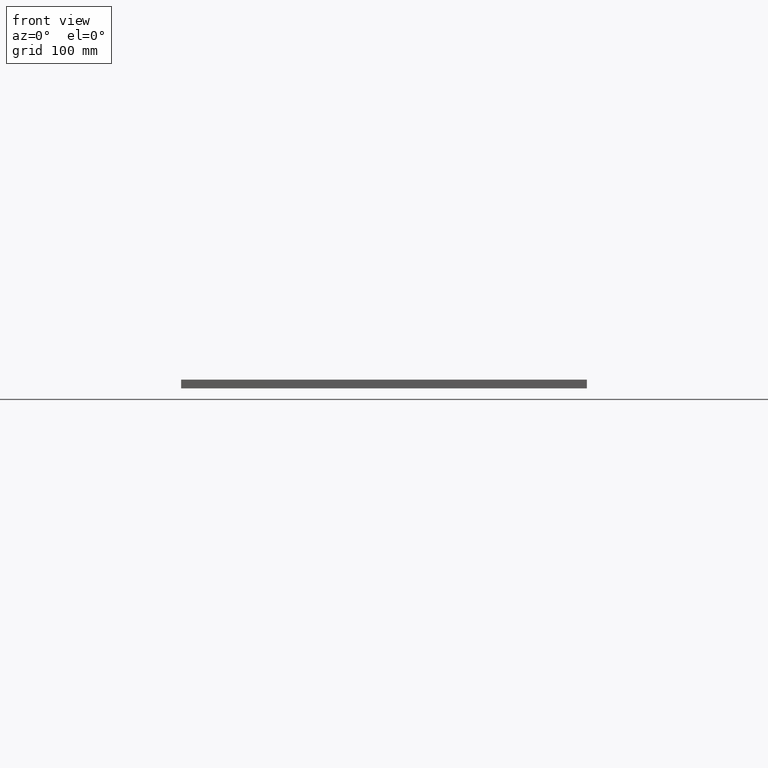
[diagram: clean part render]
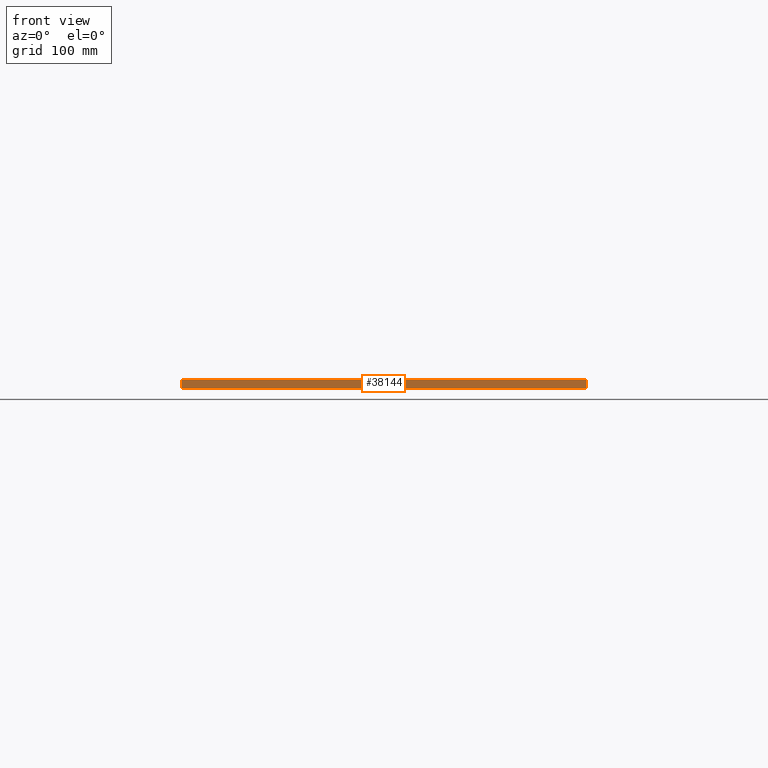
[diagram: same view with one face highlighted and labeled with its STEP entity id]
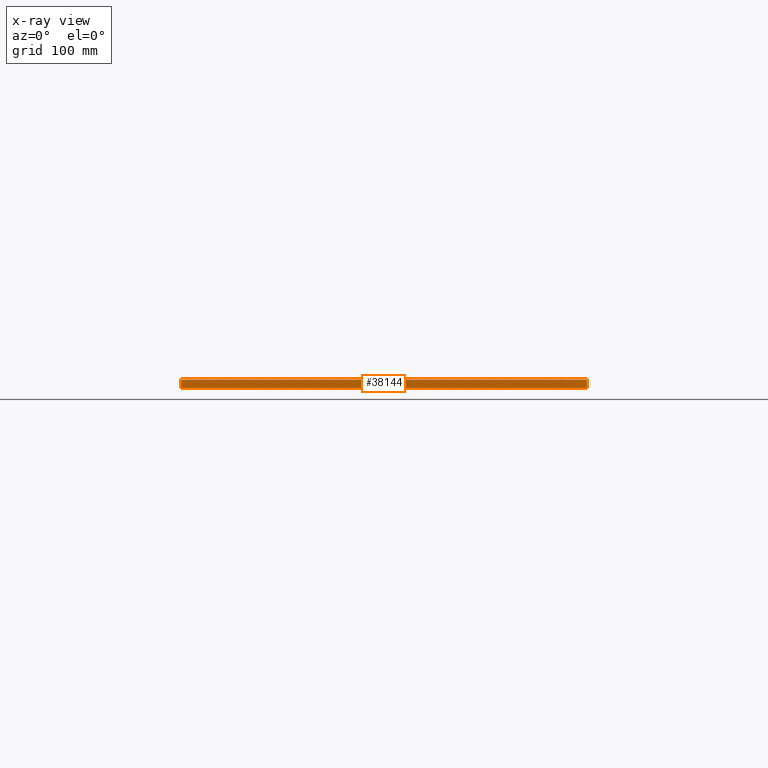
[diagram: x-ray of the same camera — body ghosted, the highlighted face saturated]
A machine part, front view. The second image highlights one B-rep face of the part: STEP entity #38144.
The next image is the same camera in x-ray: the body ghosted, the highlighted face saturated — about 0% of this face is hidden behind the body in this view.
In plain terms, the highlighted planar face has unit normal (0, 1, 0).
Its self-contained STEP definition (entity closure, byte-faithful):
#900 = ORIENTED_EDGE ( 'NONE', *, *, #20558, .T. ) ;
#1180 = VERTEX_POINT ( 'NONE', #47614 ) ;
#1527 = EDGE_LOOP ( 'NONE', ( #47327, #30396, #31912, #900 ) ) ;
#2016 = LINE ( 'NONE', #13364, #44813 ) ;
#7695 = VECTOR ( 'NONE', #34836, 1000.000000000000000 ) ;
#8011 = FACE_OUTER_BOUND ( 'NONE', #1527, .T. ) ;
#11738 = DIRECTION ( 'NONE',  ( -0.0000000000000000000, -0.0000000000000000000, -1.000000000000000000 ) ) ;
#11766 = CARTESIAN_POINT ( 'NONE',  ( 300.0000000000001100, -450.0000000000000600, 13.00000000000000000 ) ) ;
#13000 = DIRECTION ( 'NONE',  ( 0.0000000000000000000, -0.0000000000000000000, 1.000000000000000000 ) ) ;
#13364 = CARTESIAN_POINT ( 'NONE',  ( -299.9999999999999400, -450.0000000000000600, 13.00000000000000000 ) ) ;
#16946 = AXIS2_PLACEMENT_3D ( 'NONE', #16951, #38615, #13000 ) ;
#16951 = CARTESIAN_POINT ( 'NONE',  ( -299.9999999999999400, -450.0000000000000600, 13.00000000000000000 ) ) ;
#17349 = EDGE_CURVE ( 'NONE', #32652, #26434, #30463, .T. ) ;
#17791 = LINE ( 'NONE', #48142, #51895 ) ;
#20558 = EDGE_CURVE ( 'NONE', #32652, #1180, #2016, .T. ) ;
#20692 = CARTESIAN_POINT ( 'NONE',  ( -299.9999999999999400, -450.0000000000000600, 13.00000000000000000 ) ) ;
#22554 = DIRECTION ( 'NONE',  ( 1.000000000000000000, 0.0000000000000000000, 0.0000000000000000000 ) ) ;
#24366 = EDGE_CURVE ( 'NONE', #1180, #54901, #17791, .T. ) ;
#26434 = VERTEX_POINT ( 'NONE', #11766 ) ;
#30396 = ORIENTED_EDGE ( 'NONE', *, *, #53300, .F. ) ;
#30463 = LINE ( 'NONE', #52063, #7695 ) ;
#31912 = ORIENTED_EDGE ( 'NONE', *, *, #17349, .F. ) ;
#32652 = VERTEX_POINT ( 'NONE', #20692 ) ;
#32813 = VECTOR ( 'NONE', #11738, 1000.000000000000000 ) ;
#34116 = PLANE ( 'NONE',  #16946 ) ;
#34836 = DIRECTION ( 'NONE',  ( 1.000000000000000000, 0.0000000000000000000, 0.0000000000000000000 ) ) ;
#38144 = ADVANCED_FACE ( 'NONE', ( #8011 ), #34116, .F. ) ;
#38615 = DIRECTION ( 'NONE',  ( 0.0000000000000000000, 1.000000000000000000, 0.0000000000000000000 ) ) ;
#38957 = DIRECTION ( 'NONE',  ( -0.0000000000000000000, -0.0000000000000000000, -1.000000000000000000 ) ) ;
#41665 = CARTESIAN_POINT ( 'NONE',  ( 300.0000000000001100, -450.0000000000000600, 13.00000000000000000 ) ) ;
#42875 = LINE ( 'NONE', #41665, #32813 ) ;
#44813 = VECTOR ( 'NONE', #38957, 1000.000000000000000 ) ;
#47327 = ORIENTED_EDGE ( 'NONE', *, *, #24366, .T. ) ;
#47614 = CARTESIAN_POINT ( 'NONE',  ( -299.9999999999999400, -450.0000000000000600, 0.0000000000000000000 ) ) ;
#48142 = CARTESIAN_POINT ( 'NONE',  ( -299.9999999999999400, -450.0000000000000600, 0.0000000000000000000 ) ) ;
#49121 = CARTESIAN_POINT ( 'NONE',  ( 300.0000000000001100, -450.0000000000000600, 0.0000000000000000000 ) ) ;
#51895 = VECTOR ( 'NONE', #22554, 1000.000000000000000 ) ;
#52063 = CARTESIAN_POINT ( 'NONE',  ( -299.9999999999999400, -450.0000000000000600, 13.00000000000000000 ) ) ;
#53300 = EDGE_CURVE ( 'NONE', #26434, #54901, #42875, .T. ) ;
#54901 = VERTEX_POINT ( 'NONE', #49121 ) ;